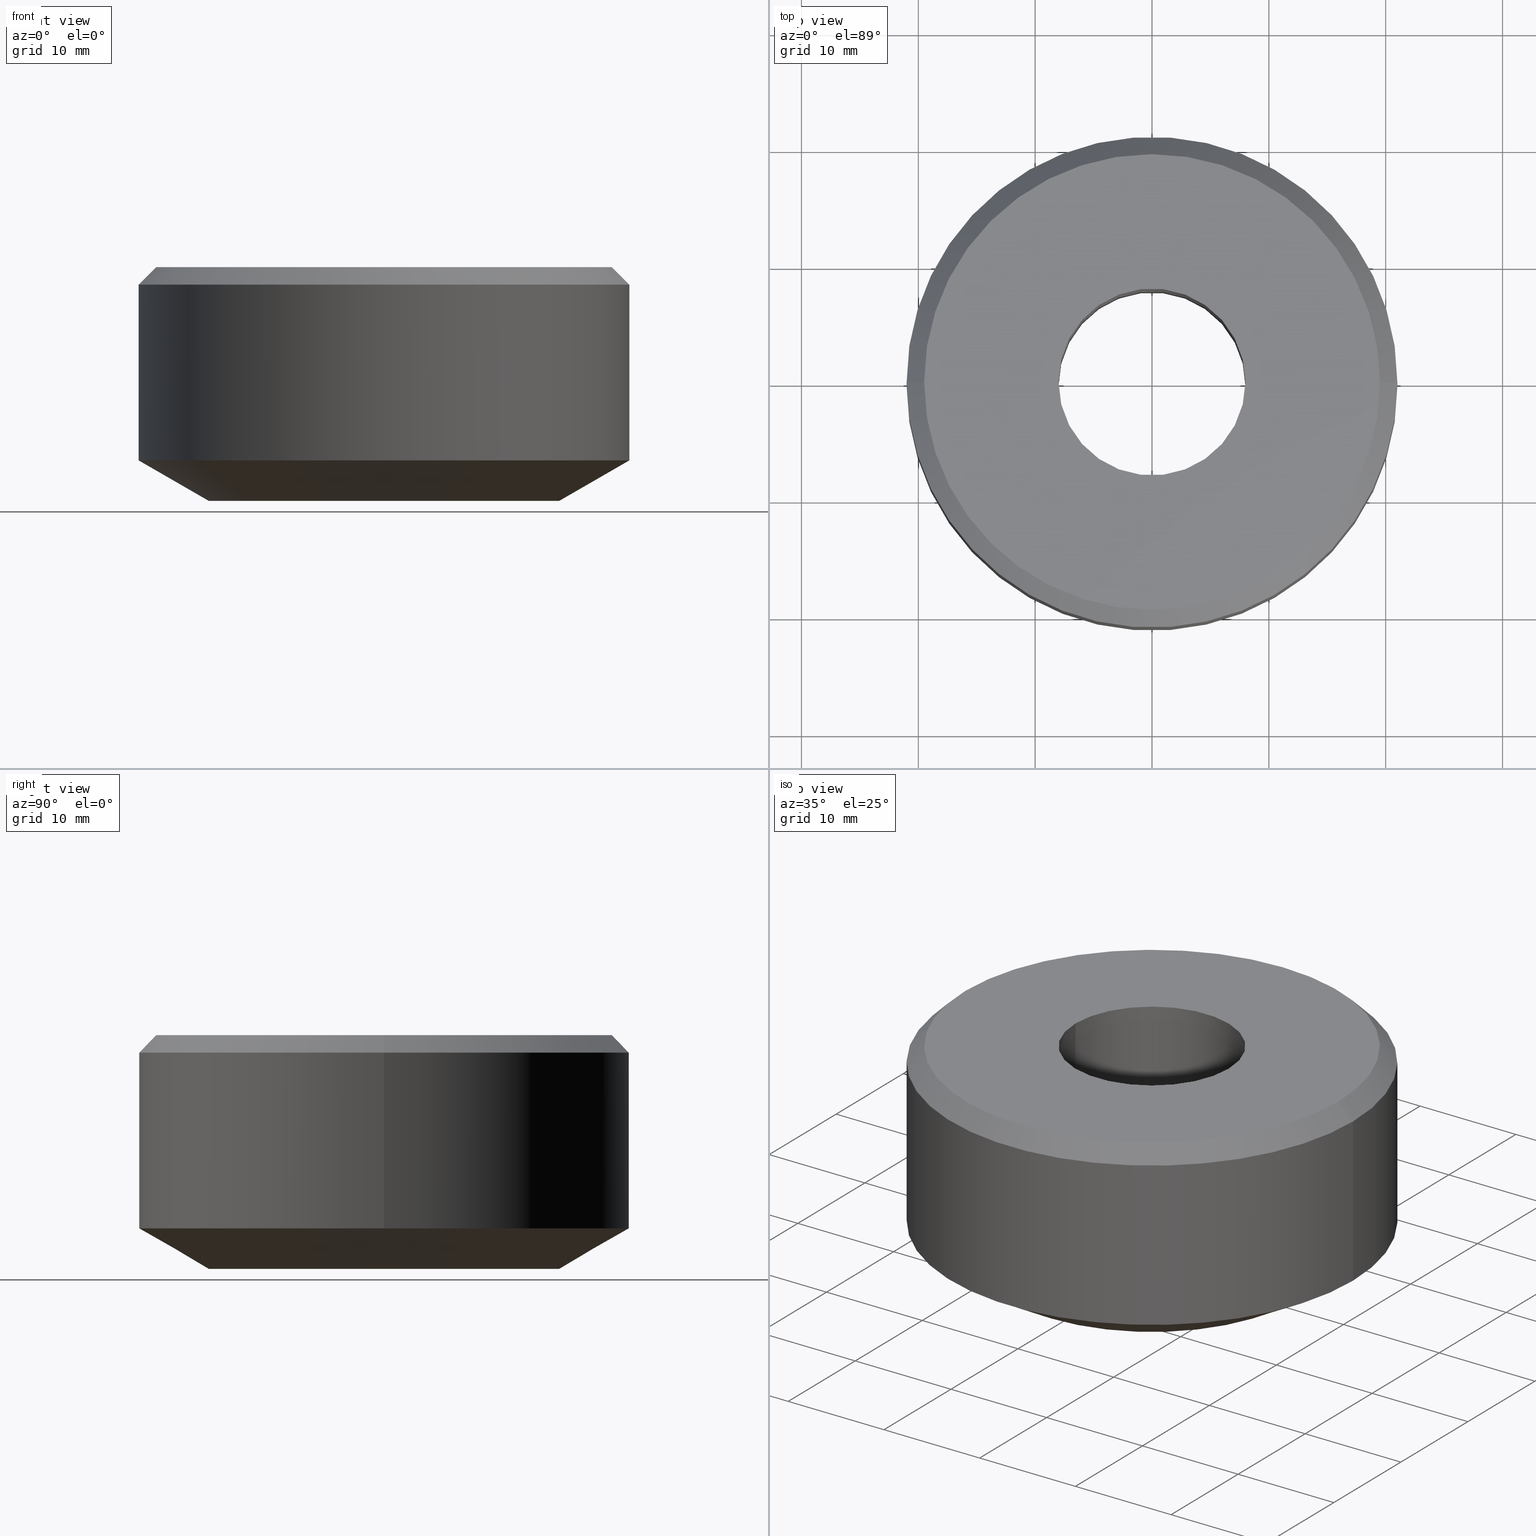
[diagram: canonical four-view strip — front | top / right | iso, engineering-drawing reading convention]
A machine part, canonical four-view strip (front | top / right | iso — engineering-drawing reading convention). The complete STEP part file that produces these views, byte-faithful:
ISO-10303-21;
HEADER;
FILE_DESCRIPTION (( 'STEP AP203' ),
    '1' );
FILE_NAME ('UM ER 25 SLOTTED.STEP',
    '2019-04-22T07:15:51',
    ( '' ),
    ( '' ),
    'SwSTEP 2.0',
    'SolidWorks 2014',
    '' );
FILE_SCHEMA (( 'CONFIG_CONTROL_DESIGN' ));
ENDSEC;

DATA;
#1 = COORDINATED_UNIVERSAL_TIME_OFFSET ( 5, 30, .AHEAD. ) ;
#2 = VECTOR ( 'NONE', #183, 1000.000000000000100 ) ;
#3 = EDGE_LOOP ( 'NONE', ( #268, #21, #112, #215 ) ) ;
#4 = ORIENTED_EDGE ( 'NONE', *, *, #189, .T. ) ;
#5 = APPROVAL_PERSON_ORGANIZATION ( #224, #78, #192 ) ;
#6 = PERSON_AND_ORGANIZATION_ROLE ( 'creator' ) ;
#7 = CARTESIAN_POINT ( 'NONE',  ( 0.0000000000000000000, 0.0000000000000000000, 0.0000000000000000000 ) ) ;
#8 = DIRECTION ( 'NONE',  ( -0.0000000000000000000, -0.0000000000000000000, 1.000000000000000000 ) ) ;
#9 = APPROVAL ( #225, 'UNSPECIFIED' ) ;
#10 = DIRECTION ( 'NONE',  ( 1.000000000000000000, 0.0000000000000000000, 0.0000000000000000000 ) ) ;
#11 = ORIENTED_EDGE ( 'NONE', *, *, #38, .T. ) ;
#12 = EDGE_CURVE ( 'NONE', #316, #147, #277, .T. ) ;
#13 = CONICAL_SURFACE ( 'NONE', #118, 15.00000000000000000, 1.047197551196600100 ) ;
#14 = EDGE_CURVE ( 'NONE', #333, #338, #61, .T. ) ;
#15 = CARTESIAN_POINT ( 'NONE',  ( -19.50000000000000000, 0.0000000000000000000, 9.999999999999994700 ) ) ;
#16 = VERTEX_POINT ( 'NONE', #157 ) ;
#17 = CC_DESIGN_SECURITY_CLASSIFICATION ( #273, ( #258 ) ) ;
#18 = CARTESIAN_POINT ( 'NONE',  ( 0.0000000000000000000, 0.0000000000000000000, -10.00000000000000200 ) ) ;
#19 = CARTESIAN_POINT ( 'NONE',  ( 0.0000000000000000000, 0.0000000000000000000, 8.500000000000007100 ) ) ;
#20 = VERTEX_POINT ( 'NONE', #46 ) ;
#21 = ORIENTED_EDGE ( 'NONE', *, *, #14, .T. ) ;
#22 = DIRECTION ( 'NONE',  ( 0.8660254037844397100, 0.0000000000000000000, 0.4999999999999979500 ) ) ;
#23 = CARTESIAN_POINT ( 'NONE',  ( 8.000000000000000000, 0.0000000000000000000, 43.26054273766887100 ) ) ;
#24 = PERSON_AND_ORGANIZATION_ROLE ( 'creator' ) ;
#25 = CALENDAR_DATE ( 2019, 22, 4 ) ;
#26 = ADVANCED_FACE ( 'NONE', ( #52, #124 ), #260, .F. ) ;
#27 = CC_DESIGN_PERSON_AND_ORGANIZATION_ASSIGNMENT ( #236, #54, ( #273 ) ) ;
#28 = PRODUCT_DEFINITION ( 'UNKNOWN', '', #258, #146 ) ;
#29 = MECHANICAL_CONTEXT ( 'NONE', #135, 'mechanical' ) ;
#30 = CIRCLE ( 'NONE', #33, 15.00000000000000000 ) ;
#31 = COORDINATED_UNIVERSAL_TIME_OFFSET ( 5, 30, .AHEAD. ) ;
#32 = LINE ( 'NONE', #280, #248 ) ;
#33 = AXIS2_PLACEMENT_3D ( 'NONE', #177, #8, #41 ) ;
#34 = DIRECTION ( 'NONE',  ( -0.0000000000000000000, -0.0000000000000000000, 1.000000000000000000 ) ) ;
#35 = EDGE_CURVE ( 'NONE', #316, #75, #282, .T. ) ;
#36 = EDGE_LOOP ( 'NONE', ( #80, #209 ) ) ;
#37 = ADVANCED_BREP_SHAPE_REPRESENTATION ( 'UM ER 25 SLOTTED', ( #130, #169 ), #185 ) ;
#38 = EDGE_CURVE ( 'NONE', #100, #16, #253, .T. ) ;
#39 = CARTESIAN_POINT ( 'NONE',  ( -15.00000000000000000, 1.836970198721029600E-015, -10.00000000000000200 ) ) ;
#40 = ORIENTED_EDGE ( 'NONE', *, *, #246, .F. ) ;
#41 = DIRECTION ( 'NONE',  ( 1.000000000000000000, 0.0000000000000000000, 0.0000000000000000000 ) ) ;
#42 = ORIENTED_EDGE ( 'NONE', *, *, #278, .F. ) ;
#43 = PERSON_AND_ORGANIZATION ( #232, #311 ) ;
#44 = VECTOR ( 'NONE', #102, 1000.000000000000000 ) ;
#45 = ORIENTED_EDGE ( 'NONE', *, *, #347, .F. ) ;
#46 = CARTESIAN_POINT ( 'NONE',  ( 15.00000000000000000, 0.0000000000000000000, -10.00000000000000200 ) ) ;
#47 = DIRECTION ( 'NONE',  ( -0.0000000000000000000, -0.0000000000000000000, 1.000000000000000000 ) ) ;
#48 = DIRECTION ( 'NONE',  ( -0.0000000000000000000, -0.0000000000000000000, 1.000000000000000000 ) ) ;
#49 = DIRECTION ( 'NONE',  ( 0.0000000000000000000, 0.0000000000000000000, -1.000000000000000000 ) ) ;
#50 = DIRECTION ( 'NONE',  ( -0.0000000000000000000, -0.0000000000000000000, 1.000000000000000000 ) ) ;
#51 = CARTESIAN_POINT ( 'NONE',  ( 0.0000000000000000000, 0.0000000000000000000, 43.26054273766887100 ) ) ;
#52 = FACE_BOUND ( 'NONE', #36, .T. ) ;
#53 = ORIENTED_EDGE ( 'NONE', *, *, #95, .T. ) ;
#54 = PERSON_AND_ORGANIZATION_ROLE ( 'classification_officer' ) ;
#55 = APPROVAL_STATUS ( 'not_yet_approved' ) ;
#56 = DATE_AND_TIME ( #307, #204 ) ;
#57 = VECTOR ( 'NONE', #295, 1000.000000000000000 ) ;
#58 = DIRECTION ( 'NONE',  ( -0.0000000000000000000, -0.0000000000000000000, 1.000000000000000000 ) ) ;
#59 = DIRECTION ( 'NONE',  ( -0.0000000000000000000, -0.0000000000000000000, 1.000000000000000000 ) ) ;
#60 = LOCAL_TIME ( 12, 45, 51.00000000000000000, #172 ) ;
#61 = LINE ( 'NONE', #318, #2 ) ;
#62 = CONICAL_SURFACE ( 'NONE', #294, 21.00000000000000000, 0.7853981633974529400 ) ;
#63 = DIRECTION ( 'NONE',  ( 1.000000000000000000, 0.0000000000000000000, 0.0000000000000000000 ) ) ;
#64 = DIRECTION ( 'NONE',  ( -0.0000000000000000000, -0.0000000000000000000, 1.000000000000000000 ) ) ;
#65 = VERTEX_POINT ( 'NONE', #15 ) ;
#66 = ORIENTED_EDGE ( 'NONE', *, *, #95, .F. ) ;
#67 = PERSON_AND_ORGANIZATION ( #232, #311 ) ;
#68 = DIRECTION ( 'NONE',  ( 1.000000000000000000, 0.0000000000000000000, 0.0000000000000000000 ) ) ;
#69 = ADVANCED_FACE ( 'NONE', ( #271 ), #221, .F. ) ;
#70 = CARTESIAN_POINT ( 'NONE',  ( 0.0000000000000000000, 0.0000000000000000000, 10.00000000000000200 ) ) ;
#71 = FACE_OUTER_BOUND ( 'NONE', #96, .T. ) ;
#72 = ORIENTED_EDGE ( 'NONE', *, *, #150, .F. ) ;
#73 = CARTESIAN_POINT ( 'NONE',  ( 0.0000000000000000000, 0.0000000000000000000, 43.26054273766887100 ) ) ;
#74 =( NAMED_UNIT ( * ) SI_UNIT ( $, .STERADIAN. ) SOLID_ANGLE_UNIT ( ) );
#75 = VERTEX_POINT ( 'NONE', #182 ) ;
#76 = DIRECTION ( 'NONE',  ( 1.000000000000000000, 0.0000000000000000000, 0.0000000000000000000 ) ) ;
#77 = FACE_OUTER_BOUND ( 'NONE', #292, .T. ) ;
#78 = APPROVAL ( #168, 'UNSPECIFIED' ) ;
#79 = APPROVAL_PERSON_ORGANIZATION ( #94, #250, #191 ) ;
#80 = ORIENTED_EDGE ( 'NONE', *, *, #143, .F. ) ;
#81 = CARTESIAN_POINT ( 'NONE',  ( -15.00000000000000000, 2.204364238465235400E-015, -10.00000000000000200 ) ) ;
#82 = ADVANCED_FACE ( 'NONE', ( #99 ), #336, .T. ) ;
#83 = AXIS2_PLACEMENT_3D ( 'NONE', #160, #50, #76 ) ;
#84 = PERSON_AND_ORGANIZATION_ROLE ( 'design_supplier' ) ;
#85 = ORIENTED_EDGE ( 'NONE', *, *, #14, .F. ) ;
#86 = DATE_AND_TIME ( #335, #211 ) ;
#87 = CARTESIAN_POINT ( 'NONE',  ( 0.0000000000000000000, 0.0000000000000000000, 43.26054273766887100 ) ) ;
#88 = CARTESIAN_POINT ( 'NONE',  ( 19.50000000000000000, 2.479909768273390300E-015, 9.999999999999994700 ) ) ;
#89 = ORIENTED_EDGE ( 'NONE', *, *, #91, .T. ) ;
#90 = DIRECTION ( 'NONE',  ( -0.0000000000000000000, -0.0000000000000000000, 1.000000000000000000 ) ) ;
#91 = EDGE_CURVE ( 'NONE', #75, #151, #103, .T. ) ;
#92 = ADVANCED_FACE ( 'NONE', ( #71, #243 ), #181, .F. ) ;
#93 = CARTESIAN_POINT ( 'NONE',  ( 0.0000000000000000000, 0.0000000000000000000, 9.999999999999994700 ) ) ;
#94 = PERSON_AND_ORGANIZATION ( #232, #311 ) ;
#95 = EDGE_CURVE ( 'NONE', #16, #338, #152, .T. ) ;
#96 = EDGE_LOOP ( 'NONE', ( #109, #234 ) ) ;
#97 = DIRECTION ( 'NONE',  ( 1.000000000000000000, 0.0000000000000000000, 0.0000000000000000000 ) ) ;
#98 = AXIS2_PLACEMENT_3D ( 'NONE', #155, #297, #270 ) ;
#99 = FACE_OUTER_BOUND ( 'NONE', #131, .T. ) ;
#100 = VERTEX_POINT ( 'NONE', #216 ) ;
#101 = CARTESIAN_POINT ( 'NONE',  ( -8.000000000000000000, 9.797174393178825700E-016, 43.26054273766887100 ) ) ;
#102 = DIRECTION ( 'NONE',  ( -0.0000000000000000000, -0.0000000000000000000, 1.000000000000000000 ) ) ;
#103 = CIRCLE ( 'NONE', #310, 8.000000000000000000 ) ;
#104 = CC_DESIGN_APPROVAL ( #250, ( #273 ) ) ;
#105 = AXIS2_PLACEMENT_3D ( 'NONE', #73, #296, #97 ) ;
#106 = APPROVAL_DATE_TIME ( #208, #250 ) ;
#107 = COORDINATED_UNIVERSAL_TIME_OFFSET ( 5, 30, .AHEAD. ) ;
#108 = AXIS2_PLACEMENT_3D ( 'NONE', #162, #49, #187 ) ;
#109 = ORIENTED_EDGE ( 'NONE', *, *, #233, .F. ) ;
#110 = PERSON_AND_ORGANIZATION_ROLE ( 'design_owner' ) ;
#111 = ORIENTED_EDGE ( 'NONE', *, *, #219, .T. ) ;
#112 = ORIENTED_EDGE ( 'NONE', *, *, #148, .T. ) ;
#113 = APPROVAL_ROLE ( '' ) ;
#114 = CARTESIAN_POINT ( 'NONE',  ( 21.00000000000000000, 0.0000000000000000000, -6.535898384862265200 ) ) ;
#115 = ADVANCED_FACE ( 'NONE', ( #77 ), #129, .F. ) ;
#116 = ORIENTED_EDGE ( 'NONE', *, *, #347, .T. ) ;
#117 = DIRECTION ( 'NONE',  ( 1.000000000000000000, 0.0000000000000000000, 0.0000000000000000000 ) ) ;
#118 = AXIS2_PLACEMENT_3D ( 'NONE', #198, #165, #222 ) ;
#119 = CARTESIAN_POINT ( 'NONE',  ( 0.0000000000000000000, 0.0000000000000000000, -6.535898384862265200 ) ) ;
#120 = CIRCLE ( 'NONE', #344, 21.00000000000000000 ) ;
#121 = ORIENTED_EDGE ( 'NONE', *, *, #278, .T. ) ;
#122 = EDGE_CURVE ( 'NONE', #175, #20, #145, .T. ) ;
#123 = ADVANCED_FACE ( 'NONE', ( #186 ), #62, .T. ) ;
#124 = FACE_OUTER_BOUND ( 'NONE', #193, .T. ) ;
#125 = EDGE_LOOP ( 'NONE', ( #85, #139, #288, #53 ) ) ;
#126 = CARTESIAN_POINT ( 'NONE',  ( 0.0000000000000000000, 0.0000000000000000000, -10.00000000000000200 ) ) ;
#127 = DIRECTION ( 'NONE',  ( -1.000000000000000000, 0.0000000000000000000, -0.0000000000000000000 ) ) ;
#128 = ADVANCED_FACE ( 'NONE', ( #249 ), #228, .T. ) ;
#129 = CYLINDRICAL_SURFACE ( 'NONE', #153, 8.000000000000000000 ) ;
#130 = MANIFOLD_SOLID_BREP ( 'Revolve1', #197 ) ;
#131 = EDGE_LOOP ( 'NONE', ( #321, #121, #345, #45 ) ) ;
#132 = DIRECTION ( 'NONE',  ( -0.0000000000000000000, -0.0000000000000000000, 1.000000000000000000 ) ) ;
#133 = CIRCLE ( 'NONE', #83, 8.000000000000000000 ) ;
#134 = DIRECTION ( 'NONE',  ( 1.000000000000000000, 0.0000000000000000000, 0.0000000000000000000 ) ) ;
#135 = APPLICATION_CONTEXT ( 'configuration controlled 3d designs of mechanical parts and assemblies' ) ;
#136 = APPROVAL_PERSON_ORGANIZATION ( #164, #9, #113 ) ;
#137 = CARTESIAN_POINT ( 'NONE',  ( 0.0000000000000000000, 0.0000000000000000000, 43.26054273766887100 ) ) ;
#138 = CIRCLE ( 'NONE', #263, 21.00000000000000000 ) ;
#139 = ORIENTED_EDGE ( 'NONE', *, *, #259, .F. ) ;
#140 = APPROVAL_DATE_TIME ( #56, #78 ) ;
#141 = CC_DESIGN_PERSON_AND_ORGANIZATION_ASSIGNMENT ( #241, #110, ( #284 ) ) ;
#142 = SECURITY_CLASSIFICATION_LEVEL ( 'unclassified' ) ;
#143 = EDGE_CURVE ( 'NONE', #151, #75, #133, .T. ) ;
#144 = EDGE_LOOP ( 'NONE', ( #342, #293 ) ) ;
#145 = CIRCLE ( 'NONE', #337, 15.00000000000000000 ) ;
#146 = DESIGN_CONTEXT ( 'detailed design', #252, 'design' ) ;
#147 = VERTEX_POINT ( 'NONE', #300 ) ;
#148 = EDGE_CURVE ( 'NONE', #338, #16, #120, .T. ) ;
#149 = CARTESIAN_POINT ( 'NONE',  ( -21.00000000000000000, 0.0000000000000000000, 8.500000000000007100 ) ) ;
#150 = EDGE_CURVE ( 'NONE', #100, #331, #138, .T. ) ;
#151 = VERTEX_POINT ( 'NONE', #163 ) ;
#152 = CIRCLE ( 'NONE', #274, 21.00000000000000000 ) ;
#153 = AXIS2_PLACEMENT_3D ( 'NONE', #51, #324, #299 ) ;
#154 = SHAPE_DEFINITION_REPRESENTATION ( #257, #37 ) ;
#155 = CARTESIAN_POINT ( 'NONE',  ( 0.0000000000000000000, 15.00000000000000000, -10.00000000000000200 ) ) ;
#156 = CARTESIAN_POINT ( 'NONE',  ( -21.00000000000000000, 2.571758278209441700E-015, 43.26054273766887100 ) ) ;
#157 = CARTESIAN_POINT ( 'NONE',  ( -21.00000000000000000, 0.0000000000000000000, 8.500000000000007100 ) ) ;
#158 = UNCERTAINTY_MEASURE_WITH_UNIT (LENGTH_MEASURE( 1.000000000000000100E-005 ), #188, 'distance_accuracy_value', 'NONE');
#159 =( NAMED_UNIT ( * ) PLANE_ANGLE_UNIT ( ) SI_UNIT ( $, .RADIAN. ) );
#160 = CARTESIAN_POINT ( 'NONE',  ( 0.0000000000000000000, 0.0000000000000000000, 10.00000000000000200 ) ) ;
#161 = FACE_OUTER_BOUND ( 'NONE', #227, .T. ) ;
#162 = CARTESIAN_POINT ( 'NONE',  ( 0.0000000000000000000, 0.0000000000000000000, 8.500000000000007100 ) ) ;
#163 = CARTESIAN_POINT ( 'NONE',  ( 8.000000000000000000, 0.0000000000000000000, 10.00000000000000200 ) ) ;
#164 = PERSON_AND_ORGANIZATION ( #232, #311 ) ;
#165 = DIRECTION ( 'NONE',  ( -0.0000000000000000000, -0.0000000000000000000, 1.000000000000000000 ) ) ;
#166 = ORIENTED_EDGE ( 'NONE', *, *, #259, .T. ) ;
#167 = CC_DESIGN_PERSON_AND_ORGANIZATION_ASSIGNMENT ( #194, #84, ( #258 ) ) ;
#168 = APPROVAL_STATUS ( 'not_yet_approved' ) ;
#169 = AXIS2_PLACEMENT_3D ( 'NONE', #7, #218, #327 ) ;
#170 = LINE ( 'NONE', #149, #242 ) ;
#171 = CIRCLE ( 'NONE', #207, 21.00000000000000000 ) ;
#172 = COORDINATED_UNIVERSAL_TIME_OFFSET ( 5, 30, .AHEAD. ) ;
#173 = DIRECTION ( 'NONE',  ( 1.000000000000000000, 0.0000000000000000000, 0.0000000000000000000 ) ) ;
#174 = AXIS2_PLACEMENT_3D ( 'NONE', #126, #47, #272 ) ;
#175 = VERTEX_POINT ( 'NONE', #81 ) ;
#176 = EDGE_CURVE ( 'NONE', #65, #16, #170, .T. ) ;
#177 = CARTESIAN_POINT ( 'NONE',  ( 0.0000000000000000000, 0.0000000000000000000, -10.00000000000000200 ) ) ;
#178 = LINE ( 'NONE', #39, #315 ) ;
#179 = ADVANCED_FACE ( 'NONE', ( #286 ), #206, .T. ) ;
#180 = AXIS2_PLACEMENT_3D ( 'NONE', #137, #309, #117 ) ;
#181 = PLANE ( 'NONE',  #98 ) ;
#182 = CARTESIAN_POINT ( 'NONE',  ( -8.000000000000000000, 9.797174393178825700E-016, 10.00000000000000200 ) ) ;
#183 = DIRECTION ( 'NONE',  ( 0.7071067811865507900, 8.659560562354972300E-017, -0.7071067811865441300 ) ) ;
#184 = PRODUCT_RELATED_PRODUCT_CATEGORY ( 'detail', '', ( #284 ) ) ;
#185 =( GEOMETRIC_REPRESENTATION_CONTEXT ( 3 ) GLOBAL_UNCERTAINTY_ASSIGNED_CONTEXT ( ( #158 ) ) GLOBAL_UNIT_ASSIGNED_CONTEXT ( ( #188, #159, #74 ) ) REPRESENTATION_CONTEXT ( 'NONE', 'WORKASPACE' ) );
#186 = FACE_OUTER_BOUND ( 'NONE', #3, .T. ) ;
#187 = DIRECTION ( 'NONE',  ( -1.000000000000000000, 0.0000000000000000000, 0.0000000000000000000 ) ) ;
#188 =( LENGTH_UNIT ( ) NAMED_UNIT ( * ) SI_UNIT ( .MILLI., .METRE. ) );
#189 = EDGE_CURVE ( 'NONE', #333, #65, #281, .T. ) ;
#190 = DIRECTION ( 'NONE',  ( -0.0000000000000000000, -0.0000000000000000000, 1.000000000000000000 ) ) ;
#191 = APPROVAL_ROLE ( '' ) ;
#192 = APPROVAL_ROLE ( '' ) ;
#193 = EDGE_LOOP ( 'NONE', ( #166, #4 ) ) ;
#194 = PERSON_AND_ORGANIZATION ( #232, #311 ) ;
#195 = CARTESIAN_POINT ( 'NONE',  ( -8.000000000000000000, 9.797174393178825700E-016, -10.00000000000000200 ) ) ;
#196 = CC_DESIGN_PERSON_AND_ORGANIZATION_ASSIGNMENT ( #43, #24, ( #258 ) ) ;
#197 = CLOSED_SHELL ( 'NONE', ( #82, #179, #123, #115, #69, #26, #128, #319, #289, #92 ) ) ;
#198 = CARTESIAN_POINT ( 'NONE',  ( 0.0000000000000000000, 0.0000000000000000000, -10.00000000000000200 ) ) ;
#199 = DIRECTION ( 'NONE',  ( 1.000000000000000000, 0.0000000000000000000, 0.0000000000000000000 ) ) ;
#200 = DIRECTION ( 'NONE',  ( 0.0000000000000000000, 0.0000000000000000000, -1.000000000000000000 ) ) ;
#201 = CARTESIAN_POINT ( 'NONE',  ( 0.0000000000000000000, 0.0000000000000000000, 9.999999999999994700 ) ) ;
#202 = EDGE_LOOP ( 'NONE', ( #285, #40, #348, #304 ) ) ;
#203 = DIRECTION ( 'NONE',  ( -0.0000000000000000000, -0.0000000000000000000, 1.000000000000000000 ) ) ;
#204 = LOCAL_TIME ( 12, 45, 51.00000000000000000, #276 ) ;
#205 = ORIENTED_EDGE ( 'NONE', *, *, #210, .F. ) ;
#206 = CYLINDRICAL_SURFACE ( 'NONE', #266, 21.00000000000000000 ) ;
#207 = AXIS2_PLACEMENT_3D ( 'NONE', #119, #90, #10 ) ;
#208 = DATE_AND_TIME ( #255, #302 ) ;
#209 = ORIENTED_EDGE ( 'NONE', *, *, #91, .F. ) ;
#210 = EDGE_CURVE ( 'NONE', #331, #338, #291, .T. ) ;
#211 = LOCAL_TIME ( 12, 45, 51.00000000000000000, #1 ) ;
#212 = CARTESIAN_POINT ( 'NONE',  ( 0.0000000000000000000, 0.0000000000000000000, -10.00000000000000200 ) ) ;
#213 = CARTESIAN_POINT ( 'NONE',  ( 0.0000000000000000000, 0.0000000000000000000, 8.500000000000007100 ) ) ;
#214 = DIRECTION ( 'NONE',  ( -0.0000000000000000000, -0.0000000000000000000, 1.000000000000000000 ) ) ;
#215 = ORIENTED_EDGE ( 'NONE', *, *, #176, .F. ) ;
#216 = CARTESIAN_POINT ( 'NONE',  ( -21.00000000000000000, 2.571758278209441700E-015, -6.535898384862265200 ) ) ;
#217 = ORIENTED_EDGE ( 'NONE', *, *, #35, .T. ) ;
#218 = DIRECTION ( 'NONE',  ( 0.0000000000000000000, 0.0000000000000000000, 1.000000000000000000 ) ) ;
#219 = EDGE_CURVE ( 'NONE', #331, #100, #171, .T. ) ;
#220 = CYLINDRICAL_SURFACE ( 'NONE', #180, 21.00000000000000000 ) ;
#221 = CYLINDRICAL_SURFACE ( 'NONE', #105, 8.000000000000000000 ) ;
#222 = DIRECTION ( 'NONE',  ( 1.000000000000000000, 0.0000000000000000000, 0.0000000000000000000 ) ) ;
#223 = APPLICATION_PROTOCOL_DEFINITION ( 'international standard', 'config_control_design', 1994, #252 ) ;
#224 = PERSON_AND_ORGANIZATION ( #232, #311 ) ;
#225 = APPROVAL_STATUS ( 'not_yet_approved' ) ;
#226 = AXIS2_PLACEMENT_3D ( 'NONE', #201, #235, #63 ) ;
#227 = EDGE_LOOP ( 'NONE', ( #42, #326, #116, #72 ) ) ;
#228 = CONICAL_SURFACE ( 'NONE', #108, 21.00000000000000000, 0.7853981633974529400 ) ;
#229 = ORIENTED_EDGE ( 'NONE', *, *, #38, .F. ) ;
#230 = DIRECTION ( 'NONE',  ( 1.000000000000000000, 0.0000000000000000000, 0.0000000000000000000 ) ) ;
#231 = FACE_OUTER_BOUND ( 'NONE', #261, .T. ) ;
#232 = PERSON ( 'UNSPECIFIED', 'UNSPECIFIED', 'UNSPECIFIED', ('UNSPECIFIED'), ('UNSPECIFIED'), ('UNSPECIFIED') ) ;
#233 = EDGE_CURVE ( 'NONE', #20, #175, #30, .T. ) ;
#234 = ORIENTED_EDGE ( 'NONE', *, *, #122, .F. ) ;
#235 = DIRECTION ( 'NONE',  ( -0.0000000000000000000, -0.0000000000000000000, 1.000000000000000000 ) ) ;
#236 = PERSON_AND_ORGANIZATION ( #232, #311 ) ;
#237 = CARTESIAN_POINT ( 'NONE',  ( 0.0000000000000000000, 0.0000000000000000000, -10.00000000000000200 ) ) ;
#238 = DIRECTION ( 'NONE',  ( -0.8660254037844397100, 1.060575238724908100E-016, 0.4999999999999979500 ) ) ;
#239 = CIRCLE ( 'NONE', #349, 8.000000000000000000 ) ;
#240 = AXIS2_PLACEMENT_3D ( 'NONE', #313, #200, #127 ) ;
#241 = PERSON_AND_ORGANIZATION ( #232, #311 ) ;
#242 = VECTOR ( 'NONE', #334, 1000.000000000000100 ) ;
#243 = FACE_BOUND ( 'NONE', #144, .T. ) ;
#244 = DIRECTION ( 'NONE',  ( 1.000000000000000000, 0.0000000000000000000, 0.0000000000000000000 ) ) ;
#245 = VECTOR ( 'NONE', #34, 1000.000000000000000 ) ;
#246 = EDGE_CURVE ( 'NONE', #147, #316, #239, .T. ) ;
#247 = DIRECTION ( 'NONE',  ( 1.000000000000000000, 0.0000000000000000000, 0.0000000000000000000 ) ) ;
#248 = VECTOR ( 'NONE', #22, 1000.000000000000100 ) ;
#249 = FACE_OUTER_BOUND ( 'NONE', #125, .T. ) ;
#250 = APPROVAL ( #55, 'UNSPECIFIED' ) ;
#251 = ORIENTED_EDGE ( 'NONE', *, *, #301, .F. ) ;
#252 = APPLICATION_CONTEXT ( 'configuration controlled 3d designs of mechanical parts and assemblies' ) ;
#253 = LINE ( 'NONE', #156, #57 ) ;
#254 = ORIENTED_EDGE ( 'NONE', *, *, #12, .F. ) ;
#255 = CALENDAR_DATE ( 2019, 22, 4 ) ;
#256 = CC_DESIGN_APPROVAL ( #78, ( #258 ) ) ;
#257 = PRODUCT_DEFINITION_SHAPE ( 'NONE', 'NONE',  #28 ) ;
#258 = PRODUCT_DEFINITION_FORMATION_WITH_SPECIFIED_SOURCE ( 'ANY', '', #284, .NOT_KNOWN. ) ;
#259 = EDGE_CURVE ( 'NONE', #65, #333, #322, .T. ) ;
#260 = PLANE ( 'NONE',  #240 ) ;
#261 = EDGE_LOOP ( 'NONE', ( #229, #267, #328, #66 ) ) ;
#262 = CARTESIAN_POINT ( 'NONE',  ( 0.0000000000000000000, 0.0000000000000000000, -6.535898384862265200 ) ) ;
#263 = AXIS2_PLACEMENT_3D ( 'NONE', #262, #312, #173 ) ;
#264 = DIRECTION ( 'NONE',  ( 1.000000000000000000, 0.0000000000000000000, 0.0000000000000000000 ) ) ;
#265 = EDGE_LOOP ( 'NONE', ( #111, #11, #290, #205 ) ) ;
#266 = AXIS2_PLACEMENT_3D ( 'NONE', #87, #58, #230 ) ;
#267 = ORIENTED_EDGE ( 'NONE', *, *, #150, .T. ) ;
#268 = ORIENTED_EDGE ( 'NONE', *, *, #189, .F. ) ;
#269 = CC_DESIGN_DATE_AND_TIME_ASSIGNMENT ( #323, #306, ( #273 ) ) ;
#270 = DIRECTION ( 'NONE',  ( 1.000000000000000000, 0.0000000000000000000, 0.0000000000000000000 ) ) ;
#271 = FACE_OUTER_BOUND ( 'NONE', #202, .T. ) ;
#272 = DIRECTION ( 'NONE',  ( 1.000000000000000000, 0.0000000000000000000, 0.0000000000000000000 ) ) ;
#273 = SECURITY_CLASSIFICATION ( '', '', #142 ) ;
#274 = AXIS2_PLACEMENT_3D ( 'NONE', #19, #214, #134 ) ;
#275 = CARTESIAN_POINT ( 'NONE',  ( 0.0000000000000000000, 0.0000000000000000000, 8.500000000000007100 ) ) ;
#276 = COORDINATED_UNIVERSAL_TIME_OFFSET ( 5, 30, .AHEAD. ) ;
#277 = CIRCLE ( 'NONE', #174, 8.000000000000000000 ) ;
#278 = EDGE_CURVE ( 'NONE', #175, #100, #178, .T. ) ;
#279 = VECTOR ( 'NONE', #190, 1000.000000000000000 ) ;
#280 = CARTESIAN_POINT ( 'NONE',  ( 15.00000000000000000, 0.0000000000000000000, -10.00000000000000200 ) ) ;
#281 = CIRCLE ( 'NONE', #226, 19.50000000000000000 ) ;
#282 = LINE ( 'NONE', #101, #44 ) ;
#283 = DATE_TIME_ROLE ( 'creation_date' ) ;
#284 = PRODUCT ( 'UM ER 25 SLOTTED', 'UM ER 25 SLOTTED', '', ( #29 ) ) ;
#285 = ORIENTED_EDGE ( 'NONE', *, *, #35, .F. ) ;
#286 = FACE_OUTER_BOUND ( 'NONE', #265, .T. ) ;
#287 = CARTESIAN_POINT ( 'NONE',  ( 21.00000000000000000, 0.0000000000000000000, 43.26054273766887100 ) ) ;
#288 = ORIENTED_EDGE ( 'NONE', *, *, #176, .T. ) ;
#289 = ADVANCED_FACE ( 'NONE', ( #161 ), #13, .T. ) ;
#290 = ORIENTED_EDGE ( 'NONE', *, *, #148, .F. ) ;
#291 = LINE ( 'NONE', #287, #245 ) ;
#292 = EDGE_LOOP ( 'NONE', ( #254, #217, #89, #251 ) ) ;
#293 = ORIENTED_EDGE ( 'NONE', *, *, #12, .T. ) ;
#294 = AXIS2_PLACEMENT_3D ( 'NONE', #275, #343, #346 ) ;
#295 = DIRECTION ( 'NONE',  ( -0.0000000000000000000, -0.0000000000000000000, 1.000000000000000000 ) ) ;
#296 = DIRECTION ( 'NONE',  ( -0.0000000000000000000, -0.0000000000000000000, 1.000000000000000000 ) ) ;
#297 = DIRECTION ( 'NONE',  ( 0.0000000000000000000, -0.0000000000000000000, 1.000000000000000000 ) ) ;
#298 = DATE_AND_TIME ( #25, #60 ) ;
#299 = DIRECTION ( 'NONE',  ( 1.000000000000000000, 0.0000000000000000000, 0.0000000000000000000 ) ) ;
#300 = CARTESIAN_POINT ( 'NONE',  ( 8.000000000000000000, 0.0000000000000000000, -10.00000000000000200 ) ) ;
#301 = EDGE_CURVE ( 'NONE', #147, #151, #308, .T. ) ;
#302 = LOCAL_TIME ( 12, 45, 51.00000000000000000, #31 ) ;
#303 = APPLICATION_PROTOCOL_DEFINITION ( 'international standard', 'config_control_design', 1994, #135 ) ;
#304 = ORIENTED_EDGE ( 'NONE', *, *, #143, .T. ) ;
#305 = CARTESIAN_POINT ( 'NONE',  ( 21.00000000000000000, 2.571758278209441700E-015, 8.500000000000007100 ) ) ;
#306 = DATE_TIME_ROLE ( 'classification_date' ) ;
#307 = CALENDAR_DATE ( 2019, 22, 4 ) ;
#308 = LINE ( 'NONE', #23, #279 ) ;
#309 = DIRECTION ( 'NONE',  ( -0.0000000000000000000, -0.0000000000000000000, 1.000000000000000000 ) ) ;
#310 = AXIS2_PLACEMENT_3D ( 'NONE', #70, #48, #244 ) ;
#311 = ORGANIZATION ( 'UNSPECIFIED', 'UNSPECIFIED', '' ) ;
#312 = DIRECTION ( 'NONE',  ( -0.0000000000000000000, -0.0000000000000000000, 1.000000000000000000 ) ) ;
#313 = CARTESIAN_POINT ( 'NONE',  ( 0.0000000000000000000, 8.000000000000000000, 9.999999999999998200 ) ) ;
#314 = AXIS2_PLACEMENT_3D ( 'NONE', #93, #203, #325 ) ;
#315 = VECTOR ( 'NONE', #238, 1000.000000000000100 ) ;
#316 = VERTEX_POINT ( 'NONE', #195 ) ;
#317 = CC_DESIGN_DATE_AND_TIME_ASSIGNMENT ( #298, #283, ( #28 ) ) ;
#318 = CARTESIAN_POINT ( 'NONE',  ( 21.00000000000000000, 2.571758278209441700E-015, 8.500000000000007100 ) ) ;
#319 = ADVANCED_FACE ( 'NONE', ( #231 ), #220, .T. ) ;
#320 = AXIS2_PLACEMENT_3D ( 'NONE', #212, #341, #68 ) ;
#321 = ORIENTED_EDGE ( 'NONE', *, *, #233, .T. ) ;
#322 = CIRCLE ( 'NONE', #314, 19.50000000000000000 ) ;
#323 = DATE_AND_TIME ( #329, #330 ) ;
#324 = DIRECTION ( 'NONE',  ( -0.0000000000000000000, -0.0000000000000000000, 1.000000000000000000 ) ) ;
#325 = DIRECTION ( 'NONE',  ( 1.000000000000000000, 0.0000000000000000000, 0.0000000000000000000 ) ) ;
#326 = ORIENTED_EDGE ( 'NONE', *, *, #122, .T. ) ;
#327 = DIRECTION ( 'NONE',  ( 1.000000000000000000, 0.0000000000000000000, 0.0000000000000000000 ) ) ;
#328 = ORIENTED_EDGE ( 'NONE', *, *, #210, .T. ) ;
#329 = CALENDAR_DATE ( 2019, 22, 4 ) ;
#330 = LOCAL_TIME ( 12, 45, 51.00000000000000000, #107 ) ;
#331 = VERTEX_POINT ( 'NONE', #114 ) ;
#332 = CC_DESIGN_APPROVAL ( #9, ( #28 ) ) ;
#333 = VERTEX_POINT ( 'NONE', #88 ) ;
#334 = DIRECTION ( 'NONE',  ( -0.7071067811865507900, 0.0000000000000000000, -0.7071067811865441300 ) ) ;
#335 = CALENDAR_DATE ( 2019, 22, 4 ) ;
#336 = CONICAL_SURFACE ( 'NONE', #320, 15.00000000000000000, 1.047197551196600100 ) ;
#337 = AXIS2_PLACEMENT_3D ( 'NONE', #18, #132, #247 ) ;
#338 = VERTEX_POINT ( 'NONE', #305 ) ;
#339 = CC_DESIGN_PERSON_AND_ORGANIZATION_ASSIGNMENT ( #67, #6, ( #28 ) ) ;
#340 = APPROVAL_DATE_TIME ( #86, #9 ) ;
#341 = DIRECTION ( 'NONE',  ( -0.0000000000000000000, -0.0000000000000000000, 1.000000000000000000 ) ) ;
#342 = ORIENTED_EDGE ( 'NONE', *, *, #246, .T. ) ;
#343 = DIRECTION ( 'NONE',  ( 0.0000000000000000000, 0.0000000000000000000, -1.000000000000000000 ) ) ;
#344 = AXIS2_PLACEMENT_3D ( 'NONE', #213, #59, #199 ) ;
#345 = ORIENTED_EDGE ( 'NONE', *, *, #219, .F. ) ;
#346 = DIRECTION ( 'NONE',  ( -1.000000000000000000, 0.0000000000000000000, 0.0000000000000000000 ) ) ;
#347 = EDGE_CURVE ( 'NONE', #20, #331, #32, .T. ) ;
#348 = ORIENTED_EDGE ( 'NONE', *, *, #301, .T. ) ;
#349 = AXIS2_PLACEMENT_3D ( 'NONE', #237, #64, #264 ) ;
ENDSEC;
END-ISO-10303-21;
